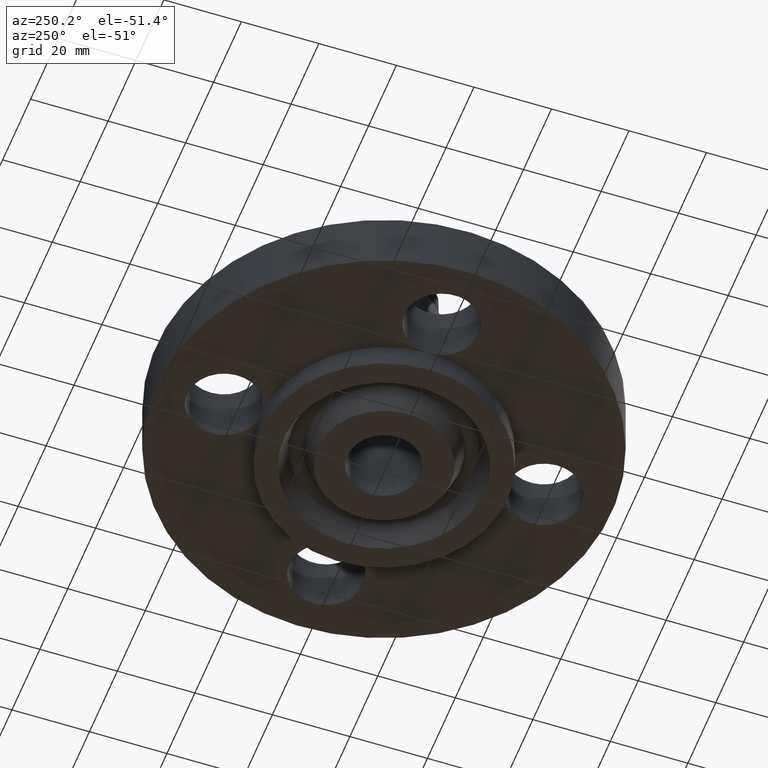
[diagram: clean part render]
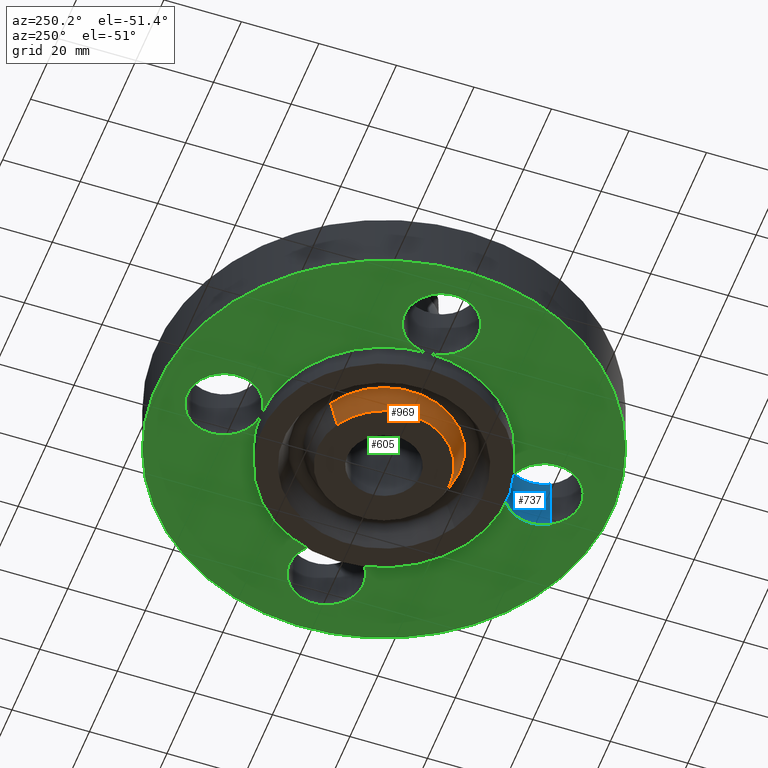
[diagram: same view with three faces highlighted in distinct colors, each labeled with its STEP entity id]
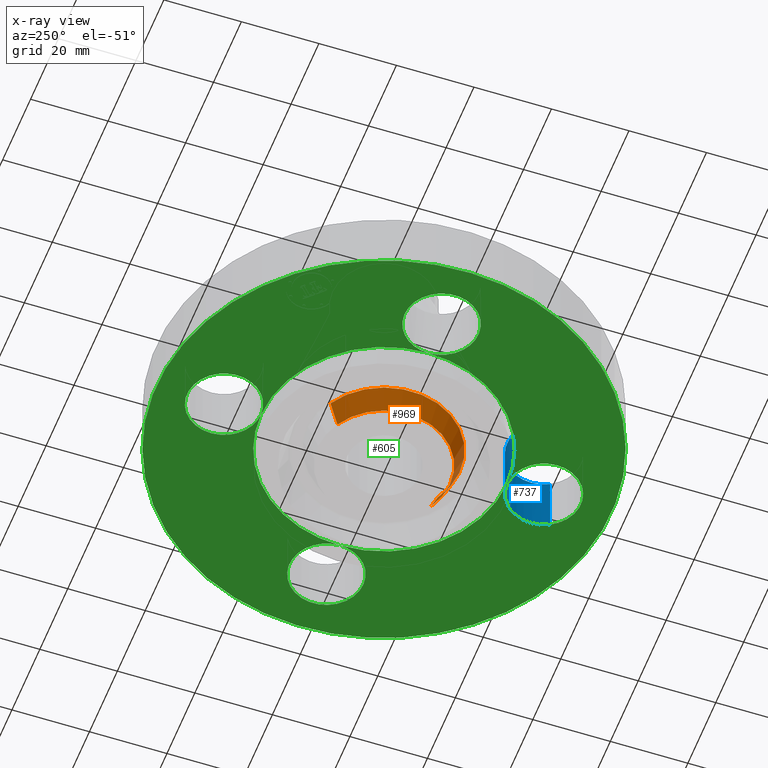
[diagram: x-ray of the same camera — body ghosted, the three highlighted faces saturated]
A machine part, auxiliary view with three faces highlighted in distinct colors.
The next image is the same camera in x-ray (body ghosted, the three faces saturated) — at least one of them is partly hidden behind the body in this view.
Their STEP definitions:

[orange] entity #969 — the highlighted conical surface has half-angle 23 deg.
#777=AXIS2_PLACEMENT_3D('Circle Axis2P3D',#775,#776,$) ;
#931=AXIS2_PLACEMENT_3D('Circle Axis2P3D',#929,#930,$) ;
#944=AXIS2_PLACEMENT_3D('Cone Axis2P3D',#941,#942,#943) ;
#770=CARTESIAN_POINT('Vertex',(-0.322173961943,0.589735481593,-0.250000000001)) ;
#772=CARTESIAN_POINT('Vertex',(0.322173961943,-0.589735481593,-0.250000000001)) ;
#775=CARTESIAN_POINT('Axis2P3D Location',(6.99353086378E-017,0.,-0.250000000001)) ;
#907=CARTESIAN_POINT('Vertex',(0.369206329292,-0.675827652547,-0.0188873350169)) ;
#914=CARTESIAN_POINT('Vertex',(-0.369206329292,0.675827652547,-0.0188873350169)) ;
#929=CARTESIAN_POINT('Axis2P3D Location',(0.,0.,-0.0188873350169)) ;
#941=CARTESIAN_POINT('Axis2P3D Location',(0.,0.,-0.310000000001)) ;
#946=CARTESIAN_POINT('Line Origine',(-0.345690145618,0.63278156707,-0.134443667509)) ;
#951=CARTESIAN_POINT('Line Origine',(0.345690145618,-0.63278156707,-0.134443667509)) ;
#776=DIRECTION('Axis2P3D Direction',(0.,0.,-0.0393700787402)) ;
#930=DIRECTION('Axis2P3D Direction',(0.,0.,0.0393700787402)) ;
#942=DIRECTION('Axis2P3D Direction',(0.,0.,0.0393700787402)) ;
#943=DIRECTION('Axis2P3D XDirection',(-0.0188750212049,0.0345504945626,0.)) ;
#947=DIRECTION('Vector Direction',(-0.00737505833565,0.0134999537303,0.0362403485611)) ;
#952=DIRECTION('Vector Direction',(0.00737505833565,-0.0134999537303,0.0362403485611)) ;
#948=VECTOR('Line Direction',#947,0.0393700787402) ;
#953=VECTOR('Line Direction',#952,0.0393700787402) ;
#964=ORIENTED_EDGE('',*,*,#955,.F.) ;
#965=ORIENTED_EDGE('',*,*,#933,.F.) ;
#966=ORIENTED_EDGE('',*,*,#950,.T.) ;
#967=ORIENTED_EDGE('',*,*,#779,.F.) ;
#969=ADVANCED_FACE('PartBody',(#968),#945,.T.) ;
#778=CIRCLE('generated circle',#777,0.672000000003) ;
#932=CIRCLE('generated circle',#931,0.770101505996) ;
#945=CONICAL_SURFACE('Cone',#944,0.64653151103,0.401425727959) ;
#779=EDGE_CURVE('',#773,#771,#778,.T.) ;
#933=EDGE_CURVE('',#915,#908,#932,.T.) ;
#950=EDGE_CURVE('',#915,#771,#949,.F.) ;
#955=EDGE_CURVE('',#908,#773,#954,.F.) ;
#963=EDGE_LOOP('',(#964,#965,#966,#967)) ;
#968=FACE_OUTER_BOUND('',#963,.T.) ;
#949=LINE('Line',#946,#948) ;
#954=LINE('Line',#951,#953) ;
#771=VERTEX_POINT('',#770) ;
#773=VERTEX_POINT('',#772) ;
#908=VERTEX_POINT('',#907) ;
#915=VERTEX_POINT('',#914) ;

[blue] entity #737 — the highlighted cylindrical surface (partial cylindrical patch) has radius 9.525 mm, axis along (-0, 0, -1).
#530=AXIS2_PLACEMENT_3D('Circle Axis2P3D',#528,#529,$) ;
#544=AXIS2_PLACEMENT_3D('Circle Axis2P3D',#542,#543,$) ;
#697=AXIS2_PLACEMENT_3D('Cylinder Axis2P3D',#694,#695,#696) ;
#727=AXIS2_PLACEMENT_3D('Circle Axis2P3D',#725,#726,$) ;
#502=CARTESIAN_POINT('Vertex',(2.02112938519E-016,-1.25000000001,0.)) ;
#528=CARTESIAN_POINT('Axis2P3D Location',(2.70999320971E-016,-1.62500000001,0.)) ;
#532=CARTESIAN_POINT('Vertex',(-0.32909346071,-1.44521542303,0.)) ;
#539=CARTESIAN_POINT('Vertex',(0.32909346071,-1.80478457698,0.)) ;
#542=CARTESIAN_POINT('Axis2P3D Location',(2.70999320971E-016,-1.62500000001,0.)) ;
#694=CARTESIAN_POINT('Axis2P3D Location',(1.99005104862E-016,-1.62500000001,0.616062992128)) ;
#699=CARTESIAN_POINT('Line Origine',(0.32909346071,-1.80478457698,0.310000000001)) ;
#703=CARTESIAN_POINT('Vertex',(0.32909346071,-1.80478457698,0.620000000002)) ;
#706=CARTESIAN_POINT('Line Origine',(-0.32909346071,-1.44521542303,0.310000000001)) ;
#710=CARTESIAN_POINT('Vertex',(-0.32909346071,-1.44521542303,0.620000000002)) ;
#725=CARTESIAN_POINT('Axis2P3D Location',(1.99005104862E-016,-1.62500000001,0.620000000002)) ;
#529=DIRECTION('Axis2P3D Direction',(0.,0.,-0.0393700787402)) ;
#543=DIRECTION('Axis2P3D Direction',(0.,0.,-0.0393700787402)) ;
#695=DIRECTION('Axis2P3D Direction',(-0.,0.,-0.0393700787402)) ;
#696=DIRECTION('Axis2P3D XDirection',(-0.0345504945626,0.0188750212049,0.)) ;
#700=DIRECTION('Vector Direction',(0.,0.,-0.0393700787402)) ;
#707=DIRECTION('Vector Direction',(0.,0.,-0.0393700787402)) ;
#726=DIRECTION('Axis2P3D Direction',(-0.,0.,-0.0393700787402)) ;
#701=VECTOR('Line Direction',#700,0.0393700787402) ;
#708=VECTOR('Line Direction',#707,0.0393700787402) ;
#731=ORIENTED_EDGE('',*,*,#712,.F.) ;
#732=ORIENTED_EDGE('',*,*,#534,.T.) ;
#733=ORIENTED_EDGE('',*,*,#546,.T.) ;
#734=ORIENTED_EDGE('',*,*,#705,.T.) ;
#735=ORIENTED_EDGE('',*,*,#729,.F.) ;
#737=ADVANCED_FACE('PartBody',(#736),#698,.F.) ;
#531=CIRCLE('generated circle',#530,0.375000000001) ;
#545=CIRCLE('generated circle',#544,0.375000000001) ;
#728=CIRCLE('generated circle',#727,0.375000000001) ;
#698=CYLINDRICAL_SURFACE('generated cylinder',#697,0.375000000001) ;
#534=EDGE_CURVE('',#533,#503,#531,.T.) ;
#546=EDGE_CURVE('',#503,#540,#545,.T.) ;
#705=EDGE_CURVE('',#540,#704,#702,.F.) ;
#712=EDGE_CURVE('',#533,#711,#709,.F.) ;
#729=EDGE_CURVE('',#711,#704,#728,.T.) ;
#730=EDGE_LOOP('',(#731,#732,#733,#734,#735)) ;
#736=FACE_OUTER_BOUND('',#730,.T.) ;
#702=LINE('Line',#699,#701) ;
#709=LINE('Line',#706,#708) ;
#503=VERTEX_POINT('',#502) ;
#533=VERTEX_POINT('',#532) ;
#540=VERTEX_POINT('',#539) ;
#704=VERTEX_POINT('',#703) ;
#711=VERTEX_POINT('',#710) ;

[green] entity #605 — the highlighted planar face has unit normal (0, 0, -1).
#51=AXIS2_PLACEMENT_3D('Circle Axis2P3D',#49,#50,$) ;
#77=AXIS2_PLACEMENT_3D('Circle Axis2P3D',#75,#76,$) ;
#84=AXIS2_PLACEMENT_3D('Circle Axis2P3D',#82,#83,$) ;
#107=AXIS2_PLACEMENT_3D('Circle Axis2P3D',#105,#106,$) ;
#142=AXIS2_PLACEMENT_3D('Circle Axis2P3D',#140,#141,$) ;
#455=AXIS2_PLACEMENT_3D('Circle Axis2P3D',#453,#454,$) ;
#462=AXIS2_PLACEMENT_3D('Circle Axis2P3D',#460,#461,$) ;
#467=AXIS2_PLACEMENT_3D('Circle Axis2P3D',#465,#466,$) ;
#493=AXIS2_PLACEMENT_3D('Circle Axis2P3D',#491,#492,$) ;
#500=AXIS2_PLACEMENT_3D('Circle Axis2P3D',#498,#499,$) ;
#507=AXIS2_PLACEMENT_3D('Circle Axis2P3D',#505,#506,$) ;
#522=AXIS2_PLACEMENT_3D('Plane Axis2P3D',#519,#520,#521) ;
#530=AXIS2_PLACEMENT_3D('Circle Axis2P3D',#528,#529,$) ;
#537=AXIS2_PLACEMENT_3D('Circle Axis2P3D',#535,#536,$) ;
#544=AXIS2_PLACEMENT_3D('Circle Axis2P3D',#542,#543,$) ;
#549=AXIS2_PLACEMENT_3D('Circle Axis2P3D',#547,#548,$) ;
#556=AXIS2_PLACEMENT_3D('Circle Axis2P3D',#554,#555,$) ;
#563=AXIS2_PLACEMENT_3D('Circle Axis2P3D',#561,#562,$) ;
#568=AXIS2_PLACEMENT_3D('Circle Axis2P3D',#566,#567,$) ;
#575=AXIS2_PLACEMENT_3D('Circle Axis2P3D',#573,#574,$) ;
#582=AXIS2_PLACEMENT_3D('Circle Axis2P3D',#580,#581,$) ;
#44=CARTESIAN_POINT('Vertex',(-0.32909346071,1.80478457698,0.)) ;
#49=CARTESIAN_POINT('Axis2P3D Location',(0.,1.62500000001,0.)) ;
#53=CARTESIAN_POINT('Vertex',(0.32909346071,1.44521542303,0.)) ;
#75=CARTESIAN_POINT('Axis2P3D Location',(0.,1.62500000001,0.)) ;
#79=CARTESIAN_POINT('Vertex',(3.90510912389E-015,1.25000000001,1.39870617276E-016)) ;
#82=CARTESIAN_POINT('Axis2P3D Location',(0.,1.62500000001,0.)) ;
#105=CARTESIAN_POINT('Axis2P3D Location',(0.,0.,1.39870617276E-016)) ;
#109=CARTESIAN_POINT('Vertex',(-1.10747299418,-2.02721571797,2.79741234551E-016)) ;
#111=CARTESIAN_POINT('Vertex',(1.10747299418,2.02721571797,2.79741234551E-016)) ;
#140=CARTESIAN_POINT('Axis2P3D Location',(0.,0.,1.39870617276E-016)) ;
#450=CARTESIAN_POINT('Vertex',(-0.599281923258,-1.09697820237,1.39870617276E-016)) ;
#453=CARTESIAN_POINT('Axis2P3D Location',(0.,0.,1.39870617276E-016)) ;
#457=CARTESIAN_POINT('Vertex',(-1.25000000001,-1.39870617276E-016,0.)) ;
#460=CARTESIAN_POINT('Axis2P3D Location',(0.,0.,1.39870617276E-016)) ;
#465=CARTESIAN_POINT('Axis2P3D Location',(0.,0.,1.39870617276E-016)) ;
#469=CARTESIAN_POINT('Vertex',(0.599281923258,1.09697820237,1.39870617276E-016)) ;
#491=CARTESIAN_POINT('Axis2P3D Location',(0.,0.,1.39870617276E-016)) ;
#495=CARTESIAN_POINT('Vertex',(1.25000000001,-1.39870617276E-016,0.)) ;
#498=CARTESIAN_POINT('Axis2P3D Location',(0.,0.,1.39870617276E-016)) ;
#502=CARTESIAN_POINT('Vertex',(2.02112938519E-016,-1.25000000001,0.)) ;
#505=CARTESIAN_POINT('Axis2P3D Location',(0.,0.,1.39870617276E-016)) ;
#519=CARTESIAN_POINT('Axis2P3D Location',(0.,1.25000000001,0.)) ;
#528=CARTESIAN_POINT('Axis2P3D Location',(2.70999320971E-016,-1.62500000001,0.)) ;
#532=CARTESIAN_POINT('Vertex',(-0.32909346071,-1.44521542303,0.)) ;
#535=CARTESIAN_POINT('Axis2P3D Location',(1.39870617276E-016,-1.62500000001,0.)) ;
#539=CARTESIAN_POINT('Vertex',(0.32909346071,-1.80478457698,0.)) ;
#542=CARTESIAN_POINT('Axis2P3D Location',(2.70999320971E-016,-1.62500000001,0.)) ;
#547=CARTESIAN_POINT('Axis2P3D Location',(1.62500000001,-1.39870617276E-016,0.)) ;
#551=CARTESIAN_POINT('Vertex',(1.44521542303,-0.32909346071,0.)) ;
#554=CARTESIAN_POINT('Axis2P3D Location',(1.62500000001,-1.39870617276E-016,0.)) ;
#558=CARTESIAN_POINT('Vertex',(1.80478457698,0.32909346071,0.)) ;
#561=CARTESIAN_POINT('Axis2P3D Location',(1.62500000001,-1.39870617276E-016,0.)) ;
#566=CARTESIAN_POINT('Axis2P3D Location',(-1.62500000001,-2.79741234551E-016,0.)) ;
#570=CARTESIAN_POINT('Vertex',(-1.44521542303,0.32909346071,0.)) ;
#573=CARTESIAN_POINT('Axis2P3D Location',(-1.62500000001,-2.79741234551E-016,0.)) ;
#577=CARTESIAN_POINT('Vertex',(-1.80478457698,-0.32909346071,0.)) ;
#580=CARTESIAN_POINT('Axis2P3D Location',(-1.62500000001,-2.79741234551E-016,0.)) ;
#50=DIRECTION('Axis2P3D Direction',(0.,-0.,-0.0393700787402)) ;
#76=DIRECTION('Axis2P3D Direction',(0.,-0.,-0.0393700787402)) ;
#83=DIRECTION('Axis2P3D Direction',(0.,-0.,-0.0393700787402)) ;
#106=DIRECTION('Axis2P3D Direction',(0.,0.,-0.0393700787402)) ;
#141=DIRECTION('Axis2P3D Direction',(0.,0.,-0.0393700787402)) ;
#454=DIRECTION('Axis2P3D Direction',(0.,0.,-0.0393700787402)) ;
#461=DIRECTION('Axis2P3D Direction',(0.,0.,-0.0393700787402)) ;
#466=DIRECTION('Axis2P3D Direction',(0.,0.,-0.0393700787402)) ;
#492=DIRECTION('Axis2P3D Direction',(0.,0.,-0.0393700787402)) ;
#499=DIRECTION('Axis2P3D Direction',(0.,0.,-0.0393700787402)) ;
#506=DIRECTION('Axis2P3D Direction',(0.,0.,-0.0393700787402)) ;
#520=DIRECTION('Axis2P3D Direction',(0.,0.,-0.0393700787402)) ;
#521=DIRECTION('Axis2P3D XDirection',(0.0393700787402,0.,0.)) ;
#529=DIRECTION('Axis2P3D Direction',(0.,0.,-0.0393700787402)) ;
#536=DIRECTION('Axis2P3D Direction',(0.,0.,-0.0393700787402)) ;
#543=DIRECTION('Axis2P3D Direction',(0.,0.,-0.0393700787402)) ;
#548=DIRECTION('Axis2P3D Direction',(0.,0.,-0.0393700787402)) ;
#555=DIRECTION('Axis2P3D Direction',(0.,0.,-0.0393700787402)) ;
#562=DIRECTION('Axis2P3D Direction',(0.,0.,-0.0393700787402)) ;
#567=DIRECTION('Axis2P3D Direction',(0.,0.,-0.0393700787402)) ;
#574=DIRECTION('Axis2P3D Direction',(0.,0.,-0.0393700787402)) ;
#581=DIRECTION('Axis2P3D Direction',(0.,0.,-0.0393700787402)) ;
#525=ORIENTED_EDGE('',*,*,#113,.T.) ;
#526=ORIENTED_EDGE('',*,*,#144,.T.) ;
#586=ORIENTED_EDGE('',*,*,#534,.F.) ;
#587=ORIENTED_EDGE('',*,*,#541,.F.) ;
#588=ORIENTED_EDGE('',*,*,#546,.F.) ;
#589=ORIENTED_EDGE('',*,*,#504,.F.) ;
#590=ORIENTED_EDGE('',*,*,#553,.F.) ;
#591=ORIENTED_EDGE('',*,*,#560,.F.) ;
#592=ORIENTED_EDGE('',*,*,#565,.F.) ;
#593=ORIENTED_EDGE('',*,*,#497,.F.) ;
#594=ORIENTED_EDGE('',*,*,#471,.F.) ;
#595=ORIENTED_EDGE('',*,*,#81,.F.) ;
#596=ORIENTED_EDGE('',*,*,#55,.F.) ;
#597=ORIENTED_EDGE('',*,*,#86,.F.) ;
#598=ORIENTED_EDGE('',*,*,#464,.F.) ;
#599=ORIENTED_EDGE('',*,*,#572,.F.) ;
#600=ORIENTED_EDGE('',*,*,#579,.F.) ;
#601=ORIENTED_EDGE('',*,*,#584,.F.) ;
#602=ORIENTED_EDGE('',*,*,#459,.F.) ;
#603=ORIENTED_EDGE('',*,*,#509,.F.) ;
#604=FACE_BOUND('',#585,.T.) ;
#605=ADVANCED_FACE('PartBody',(#527,#604),#523,.T.) ;
#52=CIRCLE('generated circle',#51,0.375000000001) ;
#78=CIRCLE('generated circle',#77,0.375000000001) ;
#85=CIRCLE('generated circle',#84,0.375000000001) ;
#108=CIRCLE('generated circle',#107,2.31000000001) ;
#143=CIRCLE('generated circle',#142,2.31000000001) ;
#456=CIRCLE('generated circle',#455,1.25000000001) ;
#463=CIRCLE('generated circle',#462,1.25000000001) ;
#468=CIRCLE('generated circle',#467,1.25000000001) ;
#494=CIRCLE('generated circle',#493,1.25000000001) ;
#501=CIRCLE('generated circle',#500,1.25000000001) ;
#508=CIRCLE('generated circle',#507,1.25000000001) ;
#531=CIRCLE('generated circle',#530,0.375000000001) ;
#538=CIRCLE('generated circle',#537,0.375000000001) ;
#545=CIRCLE('generated circle',#544,0.375000000001) ;
#550=CIRCLE('generated circle',#549,0.375000000001) ;
#557=CIRCLE('generated circle',#556,0.375000000001) ;
#564=CIRCLE('generated circle',#563,0.375000000001) ;
#569=CIRCLE('generated circle',#568,0.375000000001) ;
#576=CIRCLE('generated circle',#575,0.375000000001) ;
#583=CIRCLE('generated circle',#582,0.375000000001) ;
#55=EDGE_CURVE('',#45,#54,#52,.T.) ;
#81=EDGE_CURVE('',#54,#80,#78,.T.) ;
#86=EDGE_CURVE('',#80,#45,#85,.T.) ;
#113=EDGE_CURVE('',#110,#112,#108,.T.) ;
#144=EDGE_CURVE('',#112,#110,#143,.T.) ;
#459=EDGE_CURVE('',#451,#458,#456,.T.) ;
#464=EDGE_CURVE('',#458,#80,#463,.T.) ;
#471=EDGE_CURVE('',#80,#470,#468,.T.) ;
#497=EDGE_CURVE('',#470,#496,#494,.T.) ;
#504=EDGE_CURVE('',#496,#503,#501,.T.) ;
#509=EDGE_CURVE('',#503,#451,#508,.T.) ;
#534=EDGE_CURVE('',#533,#503,#531,.T.) ;
#541=EDGE_CURVE('',#540,#533,#538,.T.) ;
#546=EDGE_CURVE('',#503,#540,#545,.T.) ;
#553=EDGE_CURVE('',#552,#496,#550,.T.) ;
#560=EDGE_CURVE('',#559,#552,#557,.T.) ;
#565=EDGE_CURVE('',#496,#559,#564,.T.) ;
#572=EDGE_CURVE('',#571,#458,#569,.T.) ;
#579=EDGE_CURVE('',#578,#571,#576,.T.) ;
#584=EDGE_CURVE('',#458,#578,#583,.T.) ;
#524=EDGE_LOOP('',(#525,#526)) ;
#585=EDGE_LOOP('',(#586,#587,#588,#589,#590,#591,#592,#593,#594,#595,#596,#597,#598,#599,#600,#601,#602,#603)) ;
#527=FACE_OUTER_BOUND('',#524,.T.) ;
#523=PLANE('',#522) ;
#45=VERTEX_POINT('',#44) ;
#54=VERTEX_POINT('',#53) ;
#80=VERTEX_POINT('',#79) ;
#110=VERTEX_POINT('',#109) ;
#112=VERTEX_POINT('',#111) ;
#451=VERTEX_POINT('',#450) ;
#458=VERTEX_POINT('',#457) ;
#470=VERTEX_POINT('',#469) ;
#496=VERTEX_POINT('',#495) ;
#503=VERTEX_POINT('',#502) ;
#533=VERTEX_POINT('',#532) ;
#540=VERTEX_POINT('',#539) ;
#552=VERTEX_POINT('',#551) ;
#559=VERTEX_POINT('',#558) ;
#571=VERTEX_POINT('',#570) ;
#578=VERTEX_POINT('',#577) ;